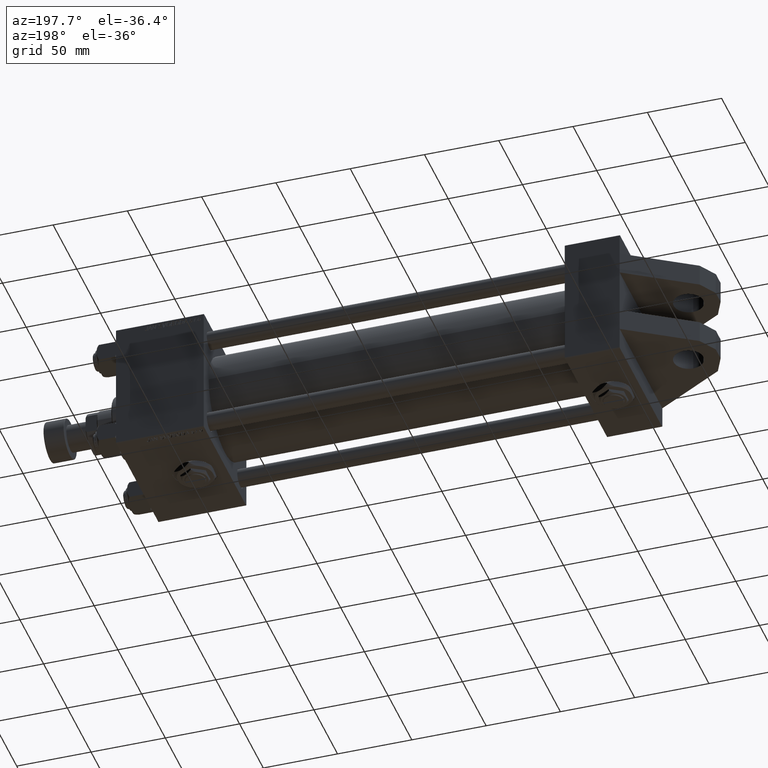
[diagram: clean part render]
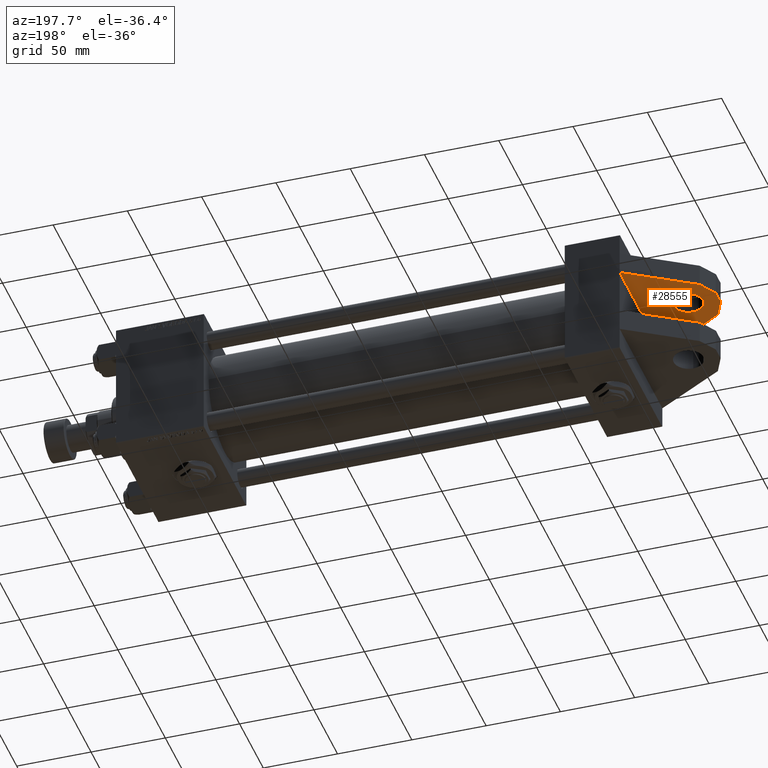
[diagram: same view with one face highlighted and labeled with its STEP entity id]
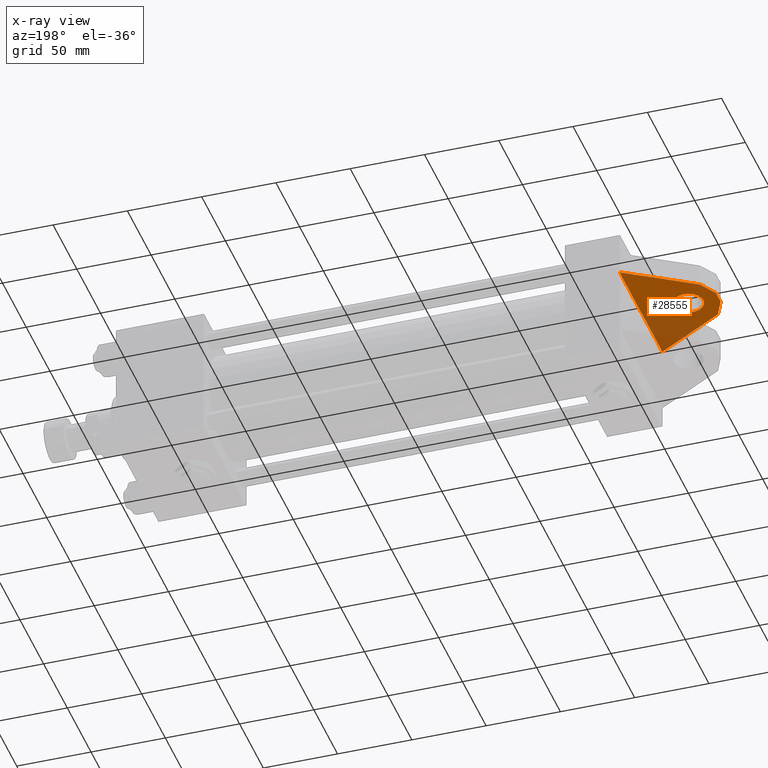
[diagram: x-ray of the same camera — body ghosted, the highlighted face saturated]
A machine part, auxiliary view. The second image highlights one B-rep face of the part: STEP entity #28555.
The next image is the same camera in x-ray: the body ghosted, the highlighted face saturated — about 28% of this face is hidden behind the body in this view.
In plain terms, the highlighted planar face has unit normal (0, 0, 1).
Its self-contained STEP definition (entity closure, byte-faithful):
#666 = EDGE_CURVE ( 'NONE', #31252, #24646, #1720, .T. ) ;
#1720 = LINE ( 'NONE', #29182, #18120 ) ;
#3151 = AXIS2_PLACEMENT_3D ( 'NONE', #44788, #45303, #9102 ) ;
#4417 = CARTESIAN_POINT ( 'NONE',  ( -44.91602078046192048, -15.00000000000000000, 16.91288539427591431 ) ) ;
#6025 = ORIENTED_EDGE ( 'NONE', *, *, #31156, .T. ) ;
#6695 = VECTOR ( 'NONE', #49686, 1000.000000000000000 ) ;
#7302 = CARTESIAN_POINT ( 'NONE',  ( 0.000000000000000000, -15.00000000000000000, 0.000000000000000000 ) ) ;
#7770 = AXIS2_PLACEMENT_3D ( 'NONE', #7302, #38739, #43768 ) ;
#8196 = ORIENTED_EDGE ( 'NONE', *, *, #10486, .T. ) ;
#8704 = CARTESIAN_POINT ( 'NONE',  ( -52.00000000000000711, -15.00000000000000000, -5.000000000000000000 ) ) ;
#9102 = DIRECTION ( 'NONE',  ( 0.000000000000000000, 0.000000000000000000, 1.000000000000000000 ) ) ;
#9174 = CARTESIAN_POINT ( 'NONE',  ( -52.00000000000000711, -15.00000000000000000, -5.000000000000000000 ) ) ;
#9431 = EDGE_LOOP ( 'NONE', ( #35930, #42887 ) ) ;
#10424 = EDGE_CURVE ( 'NONE', #50045, #28008, #24195, .T. ) ;
#10486 = EDGE_CURVE ( 'NONE', #24646, #44559, #20845, .T. ) ;
#11196 = EDGE_CURVE ( 'NONE', #28008, #50045, #16638, .T. ) ;
#12096 = VECTOR ( 'NONE', #35522, 999.9999999999998863 ) ;
#14442 = CARTESIAN_POINT ( 'NONE',  ( 0.000000000000000000, -15.00000000000000000, 45.00000000000000000 ) ) ;
#16638 = CIRCLE ( 'NONE', #3151, 10.00000000000000000 ) ;
#18120 = VECTOR ( 'NONE', #33687, 999.9999999999998863 ) ;
#19406 = CARTESIAN_POINT ( 'NONE',  ( -52.00000000000000711, -15.00000000000000000, 5.000000000000000000 ) ) ;
#20845 = LINE ( 'NONE', #8704, #26764 ) ;
#20875 = CARTESIAN_POINT ( 'NONE',  ( 0.000000000000000000, -15.00000000000000000, 45.00000000000000000 ) ) ;
#21113 = DIRECTION ( 'NONE',  ( -0.4226182617406930020, 0.000000000000000000, 0.9063077870366529343 ) ) ;
#23135 = FACE_BOUND ( 'NONE', #9431, .T. ) ;
#24195 = CIRCLE ( 'NONE', #30125, 10.00000000000000000 ) ;
#24277 = VERTEX_POINT ( 'NONE', #14442 ) ;
#24646 = VERTEX_POINT ( 'NONE', #25709 ) ;
#25070 = CARTESIAN_POINT ( 'NONE',  ( -52.00000000000000711, -15.00000000000000000, 5.000000000000000000 ) ) ;
#25425 = VERTEX_POINT ( 'NONE', #35948 ) ;
#25546 = VERTEX_POINT ( 'NONE', #25070 ) ;
#25709 = CARTESIAN_POINT ( 'NONE',  ( -46.14251089227400371, -15.00000000000000000, -17.56142592832800631 ) ) ;
#26764 = VECTOR ( 'NONE', #21113, 1000.000000000000227 ) ;
#28008 = VERTEX_POINT ( 'NONE', #36453 ) ;
#28555 = ADVANCED_FACE ( 'NONE', ( #23135, #35819 ), #43507, .F. ) ;
#29046 = LINE ( 'NONE', #20875, #6695 ) ;
#29182 = CARTESIAN_POINT ( 'NONE',  ( -46.14251089227400371, -15.00000000000000000, -17.56142592832800631 ) ) ;
#29540 = DIRECTION ( 'NONE',  ( -0.000000000000000000, 1.000000000000000000, -0.000000000000000000 ) ) ;
#29795 = DIRECTION ( 'NONE',  ( 0.000000000000000000, 0.000000000000000000, 1.000000000000000000 ) ) ;
#30125 = AXIS2_PLACEMENT_3D ( 'NONE', #39891, #29540, #29795 ) ;
#30847 = ORIENTED_EDGE ( 'NONE', *, *, #666, .T. ) ;
#31156 = EDGE_CURVE ( 'NONE', #25546, #25425, #36536, .T. ) ;
#31252 = VERTEX_POINT ( 'NONE', #33878 ) ;
#33333 = LINE ( 'NONE', #45247, #52191 ) ;
#33687 = DIRECTION ( 'NONE',  ( -0.8595155407125480984, 0.000000000000000000, 0.5111096117992853793 ) ) ;
#33878 = CARTESIAN_POINT ( 'NONE',  ( 0.000000000000000000, -15.00000000000000000, -45.00000000000000000 ) ) ;
#34855 = EDGE_CURVE ( 'NONE', #25425, #24277, #40617, .T. ) ;
#35522 = DIRECTION ( 'NONE',  ( 0.5111096117992851573, 0.000000000000000000, 0.8595155407125482094 ) ) ;
#35819 = FACE_OUTER_BOUND ( 'NONE', #40387, .T. ) ;
#35872 = DIRECTION ( 'NONE',  ( 0.8478744008358545248, 0.000000000000000000, 0.5301971335335947666 ) ) ;
#35930 = ORIENTED_EDGE ( 'NONE', *, *, #11196, .F. ) ;
#35948 = CARTESIAN_POINT ( 'NONE',  ( -44.91602078046192048, -15.00000000000000000, 16.91288539427591431 ) ) ;
#36453 = CARTESIAN_POINT ( 'NONE',  ( -32.00000000000000000, -15.00000000000000000, 10.00000000000000000 ) ) ;
#36536 = LINE ( 'NONE', #19406, #12096 ) ;
#36610 = ORIENTED_EDGE ( 'NONE', *, *, #51588, .T. ) ;
#37826 = DIRECTION ( 'NONE',  ( 0.000000000000000000, 0.000000000000000000, 1.000000000000000000 ) ) ;
#38739 = DIRECTION ( 'NONE',  ( 0.000000000000000000, -1.000000000000000000, 0.000000000000000000 ) ) ;
#39891 = CARTESIAN_POINT ( 'NONE',  ( -32.00000000000000000, -15.00000000000000000, 0.000000000000000000 ) ) ;
#40387 = EDGE_LOOP ( 'NONE', ( #6025, #45095, #36610, #30847, #8196, #48352 ) ) ;
#40617 = LINE ( 'NONE', #4417, #51041 ) ;
#42887 = ORIENTED_EDGE ( 'NONE', *, *, #10424, .F. ) ;
#43507 = PLANE ( 'NONE',  #7770 ) ;
#43768 = DIRECTION ( 'NONE',  ( 0.000000000000000000, 0.000000000000000000, 1.000000000000000000 ) ) ;
#44559 = VERTEX_POINT ( 'NONE', #9174 ) ;
#44788 = CARTESIAN_POINT ( 'NONE',  ( -32.00000000000000000, -15.00000000000000000, 0.000000000000000000 ) ) ;
#45095 = ORIENTED_EDGE ( 'NONE', *, *, #34855, .T. ) ;
#45247 = CARTESIAN_POINT ( 'NONE',  ( -52.00000000000000711, -15.00000000000000000, -5.000000000000000000 ) ) ;
#45303 = DIRECTION ( 'NONE',  ( -0.000000000000000000, 1.000000000000000000, -0.000000000000000000 ) ) ;
#48352 = ORIENTED_EDGE ( 'NONE', *, *, #50669, .T. ) ;
#49686 = DIRECTION ( 'NONE',  ( 0.000000000000000000, 0.000000000000000000, -1.000000000000000000 ) ) ;
#50045 = VERTEX_POINT ( 'NONE', #51527 ) ;
#50669 = EDGE_CURVE ( 'NONE', #44559, #25546, #33333, .T. ) ;
#51041 = VECTOR ( 'NONE', #35872, 1000.000000000000114 ) ;
#51527 = CARTESIAN_POINT ( 'NONE',  ( -32.00000000000000000, -15.00000000000000000, -10.00000000000000000 ) ) ;
#51588 = EDGE_CURVE ( 'NONE', #24277, #31252, #29046, .T. ) ;
#52191 = VECTOR ( 'NONE', #37826, 1000.000000000000000 ) ;